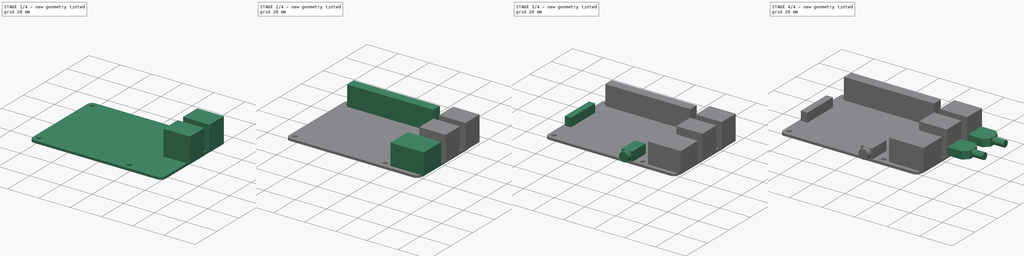
[diagram: build sequence overview — one tinted view per stage of 4, left to right]
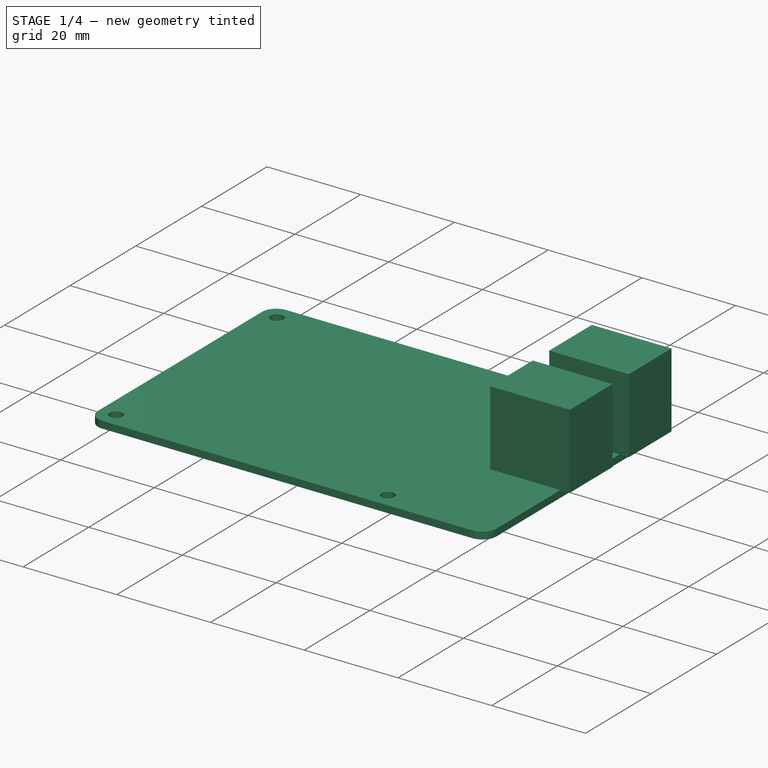
[diagram: stage 1 of 4 — iso view after this stage's code; geometry added in this stage tinted green]
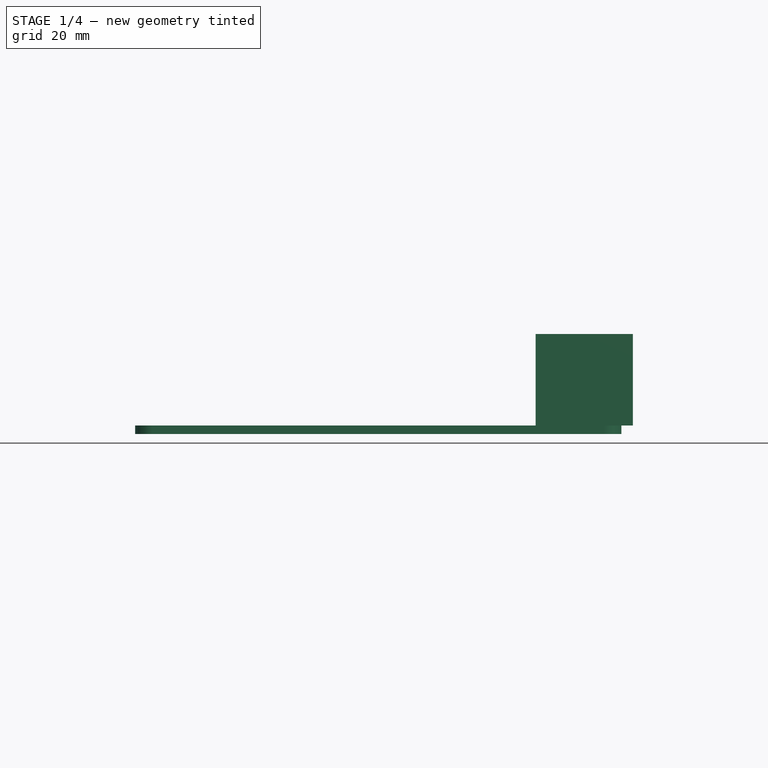
[diagram: stage 1 of 4 — front view after this stage's code; geometry added in this stage tinted green]
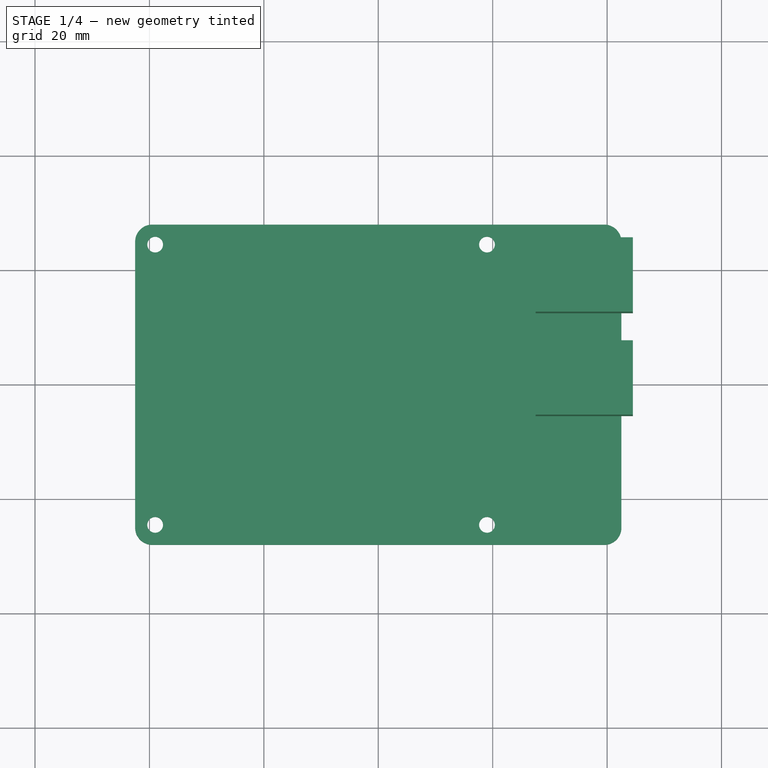
[diagram: stage 1 of 4 — top view after this stage's code; geometry added in this stage tinted green]
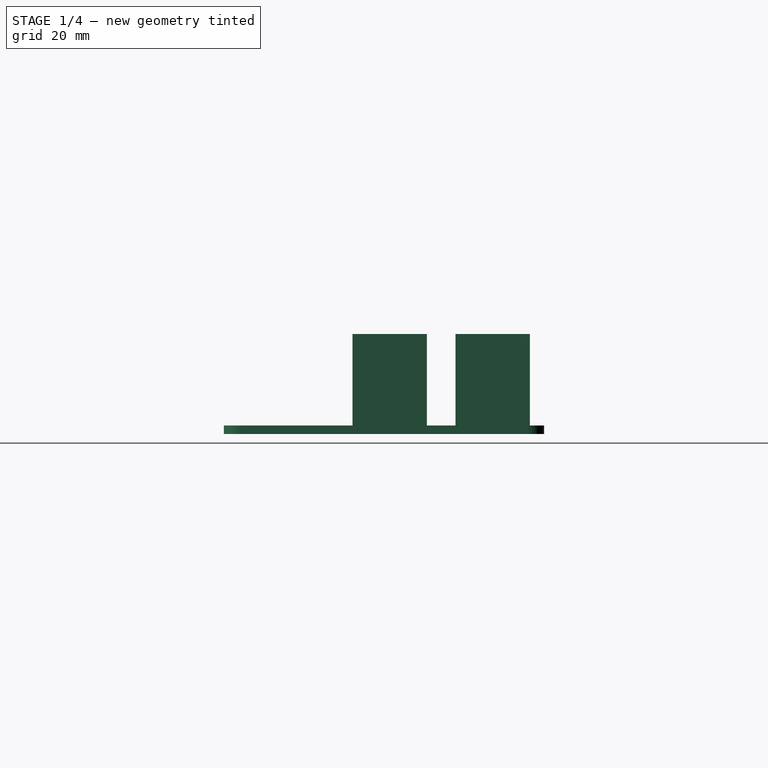
[diagram: stage 1 of 4 — right view after this stage's code; geometry added in this stage tinted green]
FCSTD DOCUMENT  (FreeCAD 0.18R15619 (Git))
Label: raspberrypi
License: All rights reserved
LicenseURL: http://en.wikipedia.org/wiki/All_rights_reserved
objects: Sketcher::SketchObject×11, PartDesign::Pad×10, PartDesign::Pocket×1, PartDesign::Chamfer×1, PartDesign::Body×1, App::Part×1
note: 35 computed .brp shape members not serialized (recipe doc carries the construction recipe); baked Part::Feature solids carry a one-line shape summary decoded from their .brp

FEATURE [Sketcher::SketchObject] Sketch  label="board-sketch"
  MapMode = 5
  Support = -> [XY_Plane]
  sketch-geometry (8):
    g0: LineSegment StartX=-39.5 StartY=28 StartZ=0 EndX=39.5 EndY=28 EndZ=0
    g1: LineSegment StartX=42.5 StartY=25 StartZ=0 EndX=42.5 EndY=-25 EndZ=0
    g2: LineSegment StartX=39.5 StartY=-28 StartZ=0 EndX=-39.5 EndY=-28 EndZ=0
    g3: LineSegment StartX=-42.5 StartY=-25 StartZ=0 EndX=-42.5 EndY=25 EndZ=0
    g4: ArcOfCircle CenterX=-39.5 CenterY=25 CenterZ=0 NormalX=0 NormalY=0 NormalZ=1 AngleXU=0 Radius=3 StartAngle=1.5708 EndAngle=3.14159
    g5: ArcOfCircle CenterX=39.5 CenterY=25 CenterZ=0 NormalX=0 NormalY=0 NormalZ=1 AngleXU=0 Radius=3 StartAngle=0 EndAngle=1.5708
    g6: ArcOfCircle CenterX=39.5 CenterY=-25 CenterZ=0 NormalX=0 NormalY=0 NormalZ=1 AngleXU=0 Radius=3 StartAngle=4.71239 EndAngle=6.28319
    g7: ArcOfCircle CenterX=-39.5 CenterY=-25 CenterZ=0 NormalX=0 NormalY=0 NormalZ=1 AngleXU=0 Radius=3 StartAngle=3.14159 EndAngle=4.71239
  constraints (20):
    c: Horizontal(g0)
    c: Horizontal(g2)
    c: Vertical(g1)
    c: Vertical(g3)
    c: Tangent(g0,g4) = 1.5708
    c: Tangent(g3,g4) = 1.5708
    c: Tangent(g0,g5) = 1.5708
    c: Tangent(g1,g5) = 1.5708
    c: Tangent(g1,g6) = 1.5708
    c: Tangent(g2,g6) = 1.5708
    c: Tangent(g2,g7) = 1.5708
    c: Tangent(g3,g7) = 1.5708
    c: DistanceY(g2,g0) = 56
    c: DistanceX(g3,g1) = 85
    c: Distance(g4,g0) = 3
    c: Distance(g5,g0) = 3
    c: Distance(g6,g1) = 3
    c: Distance(g7,g3) = 3
    c: DistanceY(g-1,g0) = 28
    c: DistanceX(g-2,g1) = 42.5
FEATURE [PartDesign::Pad] Pad  label="board"
  Length = 1.5
  Length2 = 100
  Profile = -> Sketch
  Reversed = true
  Type = 0
FEATURE [Sketcher::SketchObject] Sketch001  label="mounting-holes-sketch"
  ExternalGeometry = -> [Pad]
  MapMode = 5
  Support = -> [Pad]
  sketch-geometry (4):
    g0: Circle CenterX=-39 CenterY=24.5 CenterZ=0 NormalX=0 NormalY=0 NormalZ=1 AngleXU=0 Radius=1.375
    g1: Circle CenterX=19 CenterY=24.5 CenterZ=0 NormalX=0 NormalY=0 NormalZ=1 AngleXU=0 Radius=1.375
    g2: Circle CenterX=19 CenterY=-24.5 CenterZ=0 NormalX=0 NormalY=0 NormalZ=1 AngleXU=0 Radius=1.375
    g3: Circle CenterX=-39 CenterY=-24.5 CenterZ=0 NormalX=0 NormalY=0 NormalZ=1 AngleXU=0 Radius=1.375
  constraints (11):
    c: Distance(g0,g-4) = 3.5
    c: Distance(g0,g-3) = 3.5
    c: Radius(g0) = 1.375
    c: Equal(g0,g1)
    c: Equal(g0,g3)
    c: Vertical(g3,g0)
    c: Horizontal(g0,g1)
    c: Vertical(g1,g2)
    c: Horizontal(g3,g2)
    c: Distance(g2,g-6) = 3.5
    c: Distance(g1,g0) = 58
FEATURE [PartDesign::Pocket] Pocket  label="mounting-holes"
  BaseFeature = -> Pad
  Length = 5
  Length2 = 100
  Profile = -> Sketch001
  Type = 1
FEATURE [Sketcher::SketchObject] Sketch002  label="usb-sketch"
  ExternalGeometry = -> [Pocket]
  MapMode = 5
  Support = -> [Pocket]
  sketch-geometry (8):
    g0: LineSegment StartX=27.5 StartY=25.5 StartZ=0 EndX=44.5 EndY=25.5 EndZ=0
    g1: LineSegment StartX=44.5 StartY=25.5 StartZ=0 EndX=44.5 EndY=12.5 EndZ=0
    g2: LineSegment StartX=44.5 StartY=12.5 StartZ=0 EndX=27.5 EndY=12.5 EndZ=0
    g3: LineSegment StartX=27.5 StartY=12.5 StartZ=0 EndX=27.5 EndY=25.5 EndZ=0
    g4: LineSegment StartX=27.5 StartY=7.5 StartZ=0 EndX=44.5 EndY=7.5 EndZ=0
    g5: LineSegment StartX=44.5 StartY=7.5 StartZ=0 EndX=44.5 EndY=-5.5 EndZ=0
    g6: LineSegment StartX=44.5 StartY=-5.5 StartZ=0 EndX=27.5 EndY=-5.5 EndZ=0
    g7: LineSegment StartX=27.5 StartY=-5.5 StartZ=0 EndX=27.5 EndY=7.5 EndZ=0
  constraints (24):
    c: Coincident(g0,g1)
    c: Coincident(g1,g2)
    c: Coincident(g2,g3)
    c: Coincident(g3,g0)
    c: Horizontal(g0)
    c: Horizontal(g2)
    c: Vertical(g1)
    c: Vertical(g3)
    c: Coincident(g4,g5)
    c: Coincident(g5,g6)
    c: Coincident(g6,g7)
    c: Coincident(g7,g4)
    c: Horizontal(g4)
    c: Horizontal(g6)
    c: Vertical(g5)
    c: Vertical(g7)
    c: Equal(g5,g1)
    c: Equal(g0,g4)
    c: Distance(g0) = 17
    c: Distance(g3) = 13
    c: DistanceY(g-3,g0) = 53.5
    c: DistanceY(g-3,g4) = 35.5
    c: DistanceX(g-4,g0) = 2
    c: DistanceX(g-4,g4) = 2
FEATURE [PartDesign::Pad] Pad001  label="usb"
  BaseFeature = -> Pocket
  Length = 16
  Length2 = 100
  Profile = -> Sketch002
  Type = 0
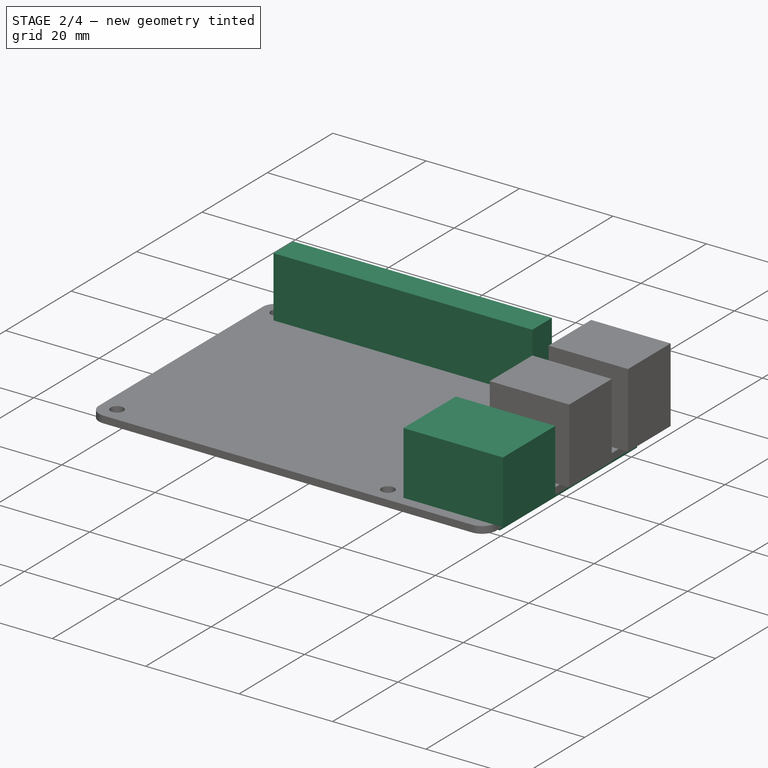
[diagram: stage 2 of 4 — iso view after this stage's code; geometry added in this stage tinted green]
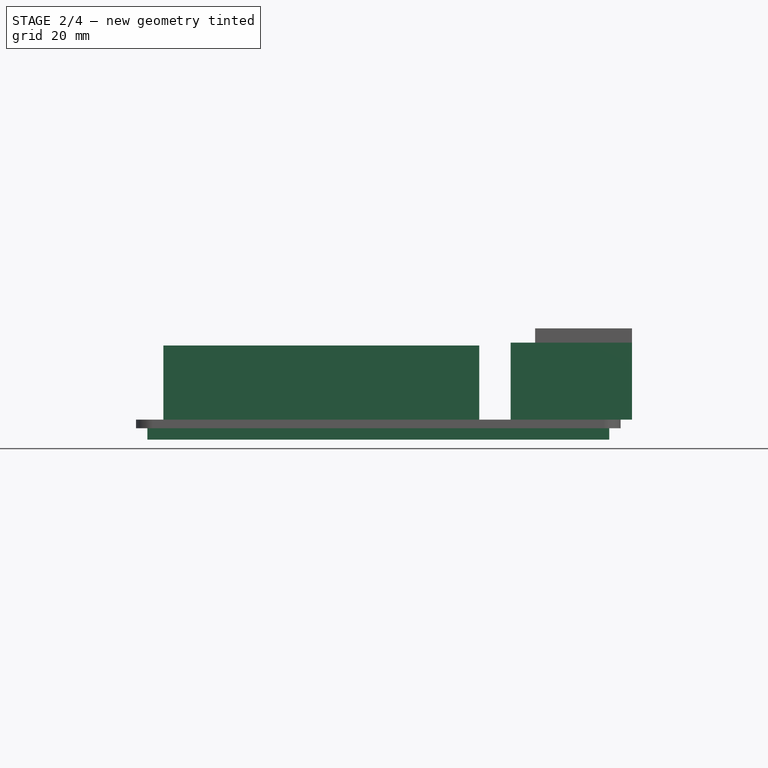
[diagram: stage 2 of 4 — front view after this stage's code; geometry added in this stage tinted green]
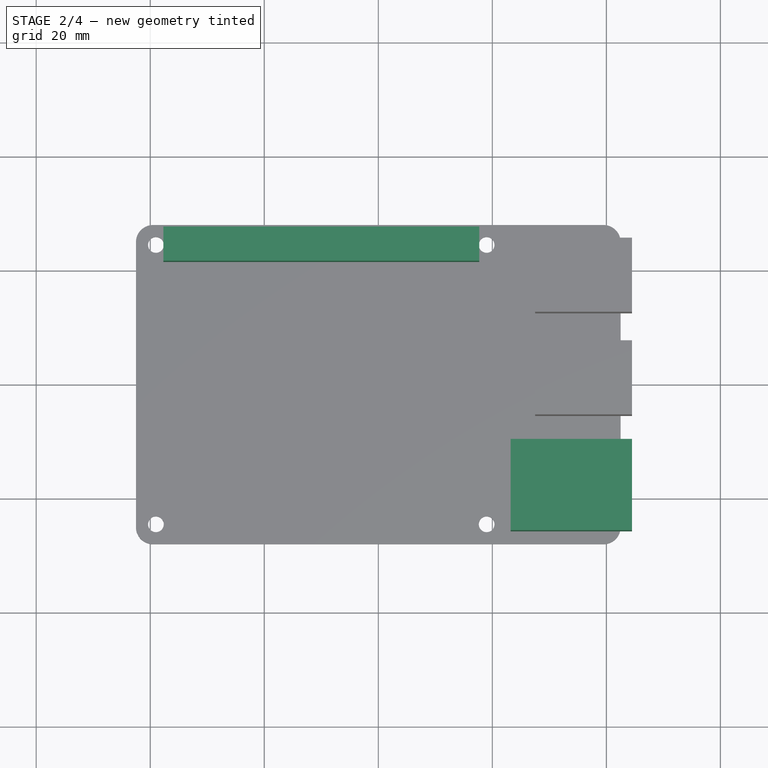
[diagram: stage 2 of 4 — top view after this stage's code; geometry added in this stage tinted green]
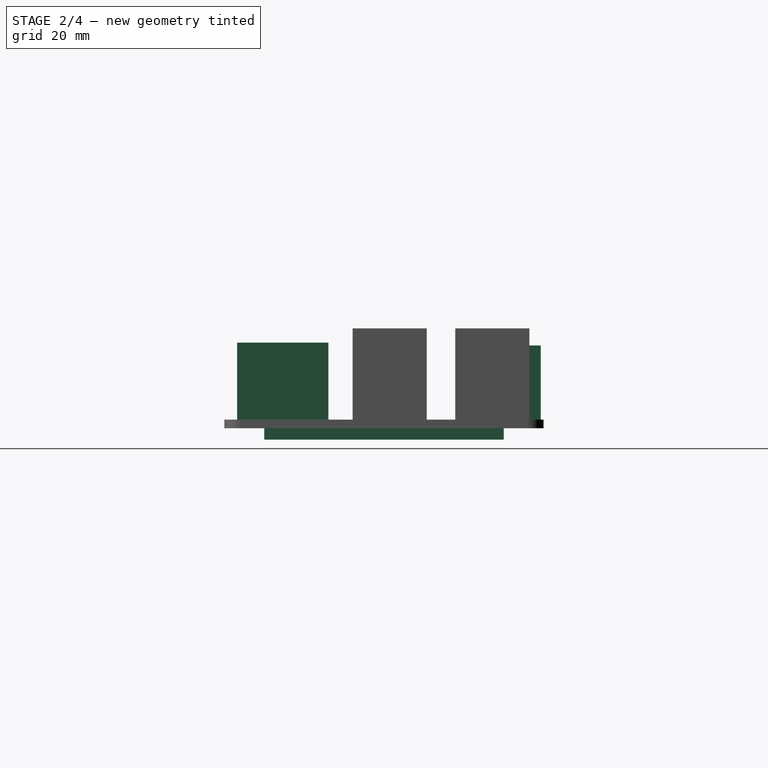
[diagram: stage 2 of 4 — right view after this stage's code; geometry added in this stage tinted green]
FEATURE [Sketcher::SketchObject] Sketch003  label="ethernet-sketch"
  ExternalGeometry = -> [Pad001]
  MapMode = 5
  Support = -> [Pad001]
  sketch-geometry (4):
    g0: LineSegment StartX=23.2 StartY=-9.75 StartZ=0 EndX=44.5 EndY=-9.75 EndZ=0
    g1: LineSegment StartX=44.5 StartY=-9.75 StartZ=0 EndX=44.5 EndY=-25.75 EndZ=0
    g2: LineSegment StartX=44.5 StartY=-25.75 StartZ=0 EndX=23.2 EndY=-25.75 EndZ=0
    g3: LineSegment StartX=23.2 StartY=-25.75 StartZ=0 EndX=23.2 EndY=-9.75 EndZ=0
  constraints (12):
    c: Coincident(g0,g1)
    c: Coincident(g1,g2)
    c: Coincident(g2,g3)
    c: Coincident(g3,g0)
    c: Horizontal(g0)
    c: Horizontal(g2)
    c: Vertical(g1)
    c: Vertical(g3)
    c: Distance(g0) = 21.3
    c: Distance(g1) = 16
    c: DistanceX(g-3,g1) = 2
    c: DistanceY(g-4,g1) = 2.25
FEATURE [PartDesign::Pad] Pad002  label="ethernet"
  BaseFeature = -> Pad001
  Length = 13.5
  Length2 = 100
  Profile = -> Sketch003
  Type = 0
FEATURE [Sketcher::SketchObject] Sketch004  label="soldering-sketch"
  ExternalGeometry = -> [Pad002]
  MapMode = 5
  Placement = pos=(0,0,-1.5) rot=(1,0,0;3.14159rad)
  Support = -> [Pad002]
  sketch-geometry (4):
    g0: LineSegment StartX=-40.5 StartY=21 StartZ=0 EndX=40.5 EndY=21 EndZ=0
    g1: LineSegment StartX=40.5 StartY=21 StartZ=0 EndX=40.5 EndY=-21 EndZ=0
    g2: LineSegment StartX=40.5 StartY=-21 StartZ=0 EndX=-40.5 EndY=-21 EndZ=0
    g3: LineSegment StartX=-40.5 StartY=-21 StartZ=0 EndX=-40.5 EndY=21 EndZ=0
  constraints (12):
    c: Coincident(g0,g1)
    c: Coincident(g1,g2)
    c: Coincident(g2,g3)
    c: Coincident(g3,g0)
    c: Horizontal(g0)
    c: Horizontal(g2)
    c: Vertical(g1)
    c: Vertical(g3)
    c: DistanceX(g0,g-6) = 2
    c: DistanceX(g-4,g0) = 2
    c: DistanceY(g0,g-4) = 4
    c: DistanceY(g-4,g2) = 4
FEATURE [PartDesign::Pad] Pad003  label="soldering"
  BaseFeature = -> Pad002
  Length = 2
  Length2 = 100
  Profile = -> Sketch004
  Type = 0
FEATURE [Sketcher::SketchObject] Sketch005  label="gpio-sketch"
  ExternalGeometry = -> [Pad003]
  MapMode = 5
  Support = -> [Pad003]
  sketch-geometry (4):
    g0: LineSegment StartX=-37.7 StartY=27.5 StartZ=0 EndX=17.7 EndY=27.5 EndZ=0
    g1: LineSegment StartX=17.7 StartY=27.5 StartZ=0 EndX=17.7 EndY=21.5 EndZ=0
    g2: LineSegment StartX=17.7 StartY=21.5 StartZ=0 EndX=-37.7 EndY=21.5 EndZ=0
    g3: LineSegment StartX=-37.7 StartY=21.5 StartZ=0 EndX=-37.7 EndY=27.5 EndZ=0
  constraints (12):
    c: Coincident(g0,g1)
    c: Coincident(g1,g2)
    c: Coincident(g2,g3)
    c: Coincident(g3,g0)
    c: Horizontal(g0)
    c: Horizontal(g2)
    c: Vertical(g1)
    c: Vertical(g3)
    c: DistanceX(g0,g0) = 55.4
    c: DistanceX(g-3,g0) = 56.7
    c: Distance(g3) = 6
    c: DistanceY(g-3,g0) = 3
FEATURE [PartDesign::Pad] Pad004  label="gpio"
  BaseFeature = -> Pad003
  Length = 13
  Length2 = 100
  Profile = -> Sketch005
  Type = 0
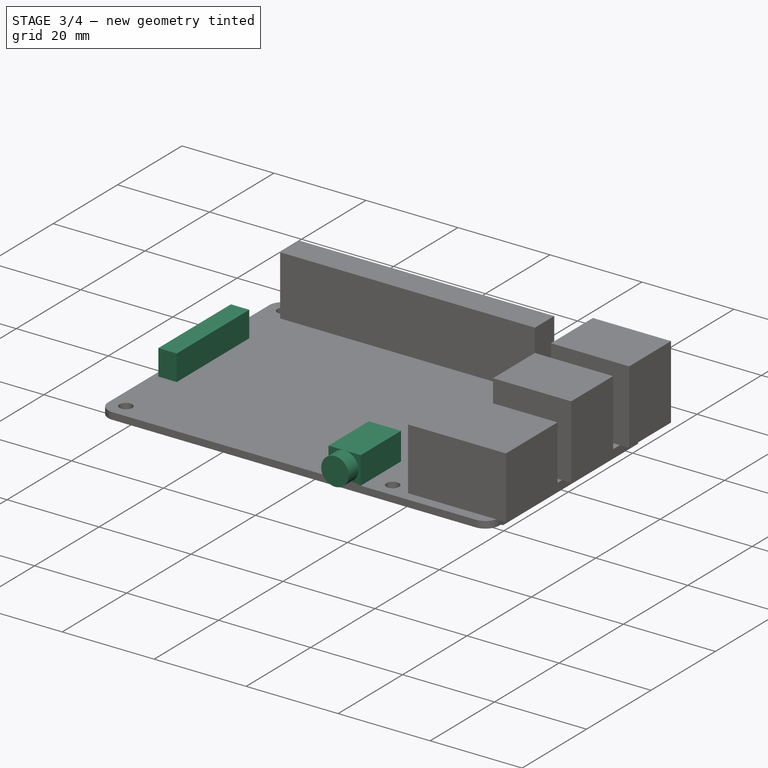
[diagram: stage 3 of 4 — iso view after this stage's code; geometry added in this stage tinted green]
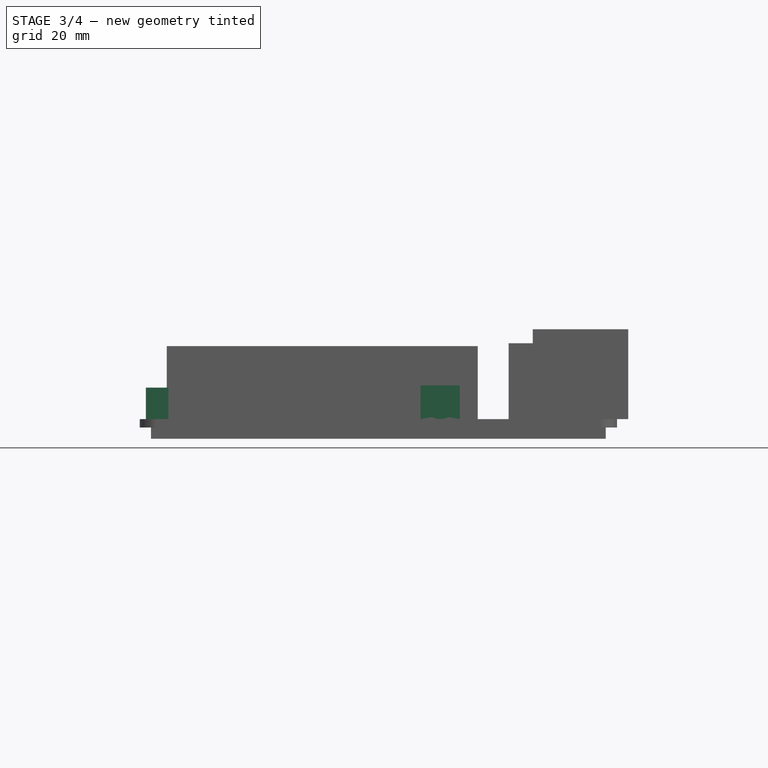
[diagram: stage 3 of 4 — front view after this stage's code; geometry added in this stage tinted green]
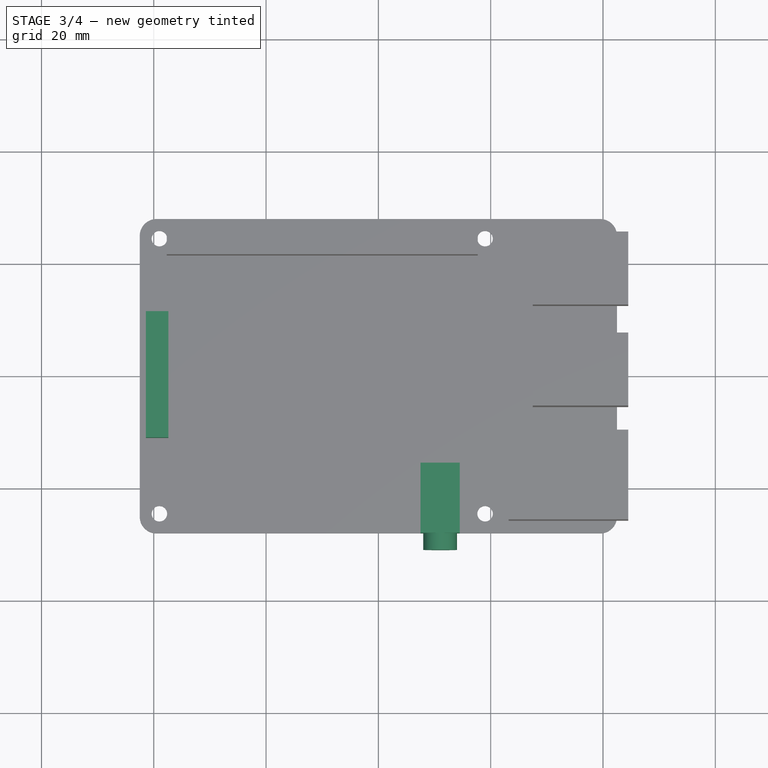
[diagram: stage 3 of 4 — top view after this stage's code; geometry added in this stage tinted green]
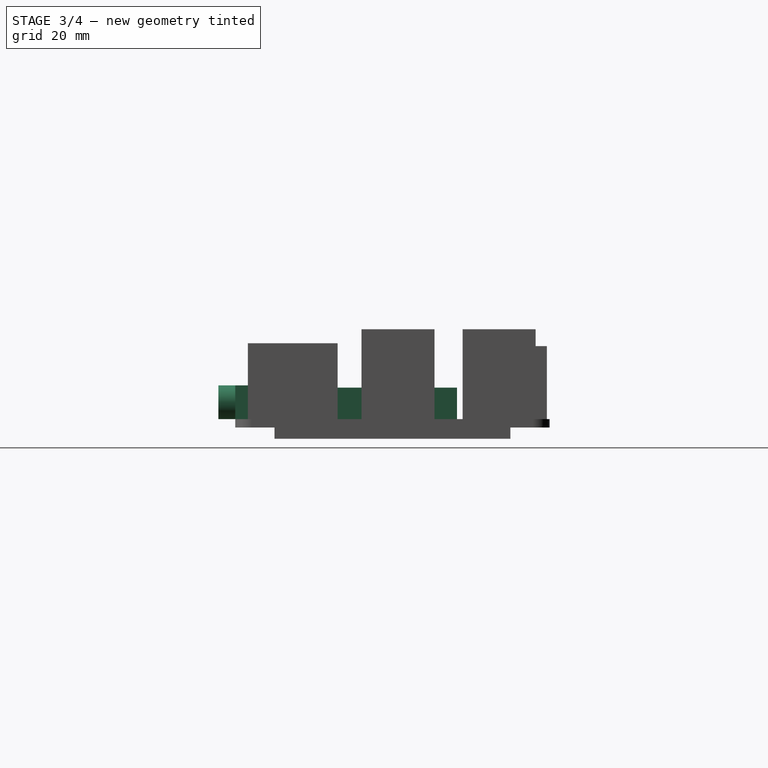
[diagram: stage 3 of 4 — right view after this stage's code; geometry added in this stage tinted green]
FEATURE [Sketcher::SketchObject] Sketch006  label="audio-jack-sketch"
  ExternalGeometry = -> [Pad004,Pad]
  MapMode = 5
  Support = -> [Pad004]
  sketch-geometry (4):
    g0: LineSegment StartX=7.5 StartY=-15.5 StartZ=0 EndX=14.5 EndY=-15.5 EndZ=0
    g1: LineSegment StartX=14.5 StartY=-15.5 StartZ=0 EndX=14.5 EndY=-28 EndZ=0
    g2: LineSegment StartX=14.5 StartY=-28 StartZ=0 EndX=7.5 EndY=-28 EndZ=0
    g3: LineSegment StartX=7.5 StartY=-28 StartZ=0 EndX=7.5 EndY=-15.5 EndZ=0
  constraints (12):
    c: Coincident(g0,g1)
    c: Coincident(g1,g2)
    c: Coincident(g2,g3)
    c: Coincident(g3,g0)
    c: Horizontal(g0)
    c: Horizontal(g2)
    c: Vertical(g1)
    c: Vertical(g3)
    c: DistanceX(g0,g0) = 7
    c: DistanceY(g1,g1) = 12.5
    c: PointOnObject(g2,g-3)
    c: DistanceX(g-5,g2) = 50
FEATURE [PartDesign::Pad] Pad005  label="audio-jack"
  BaseFeature = -> Pad004
  Length = 6
  Length2 = 100
  Profile = -> Sketch006
  Type = 0
FEATURE [Sketcher::SketchObject] Sketch007  label="audio-jack-ext-sketch"
  ExternalGeometry = -> [Pad005]
  MapMode = 5
  Placement = pos=(0,-28,0) rot=(1,0,0;1.5708rad)
  Support = -> [Pad005]
  sketch-geometry (1):
    g0: Circle CenterX=11 CenterY=3 CenterZ=0 NormalX=0 NormalY=0 NormalZ=1 AngleXU=0 Radius=3
  constraints (3):
    c: Radius(g0) = 3
    c: DistanceY(g0,g-4) = 3
    c: DistanceX(g-4,g0) = 3.5
FEATURE [PartDesign::Pad] Pad006  label="audio-jack-ext"
  BaseFeature = -> Pad005
  Length = 3
  Length2 = 100
  Profile = -> Sketch007
  Type = 0
FEATURE [Sketcher::SketchObject] Sketch008
  ExternalGeometry = -> [Pad006]
  MapMode = 5
  Support = -> [Pad006]
  sketch-geometry (4):
    g0: LineSegment StartX=-41.4 StartY=11.5 StartZ=0 EndX=-37.4 EndY=11.5 EndZ=0
    g1: LineSegment StartX=-37.4 StartY=11.5 StartZ=0 EndX=-37.4 EndY=-11 EndZ=0
    g2: LineSegment StartX=-37.4 StartY=-11 StartZ=0 EndX=-41.4 EndY=-11 EndZ=0
    g3: LineSegment StartX=-41.4 StartY=-11 StartZ=0 EndX=-41.4 EndY=11.5 EndZ=0
  constraints (12):
    c: Coincident(g0,g1)
    c: Coincident(g1,g2)
    c: Coincident(g2,g3)
    c: Coincident(g3,g0)
    c: Horizontal(g0)
    c: Horizontal(g2)
    c: Vertical(g1)
    c: Vertical(g3)
    c: Distance(g1) = 22.5
    c: Distance(g0) = 4
    c: DistanceX(g-3,g0) = 1.1
    c: DistanceY(g-4,g2) = 17
FEATURE [PartDesign::Pad] Pad007  label="displayport"
  BaseFeature = -> Pad006
  Length = 5.6
  Length2 = 100
  Profile = -> Sketch008
  Type = 0
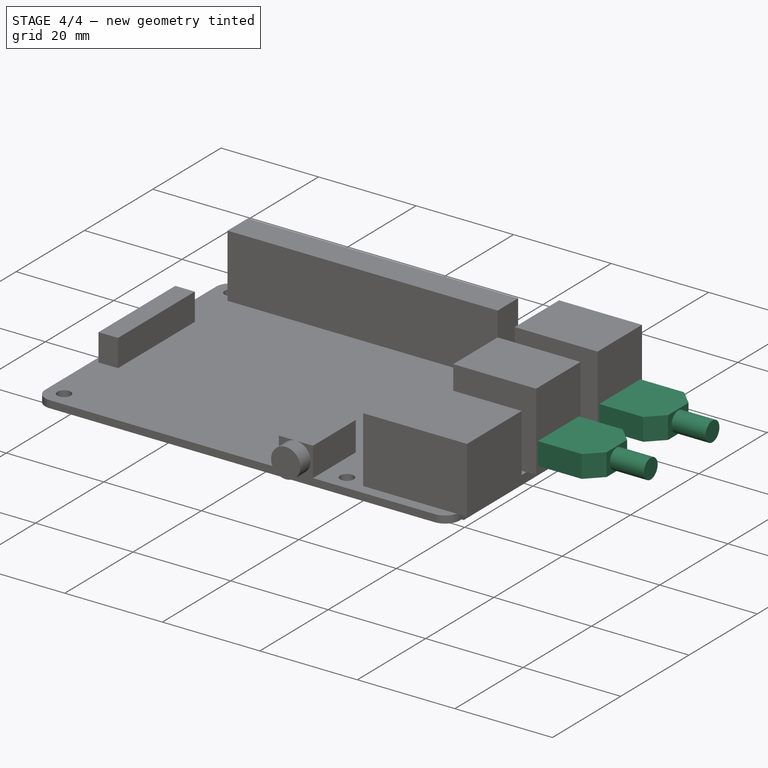
[diagram: stage 4 of 4 — iso view after this stage's code; geometry added in this stage tinted green]
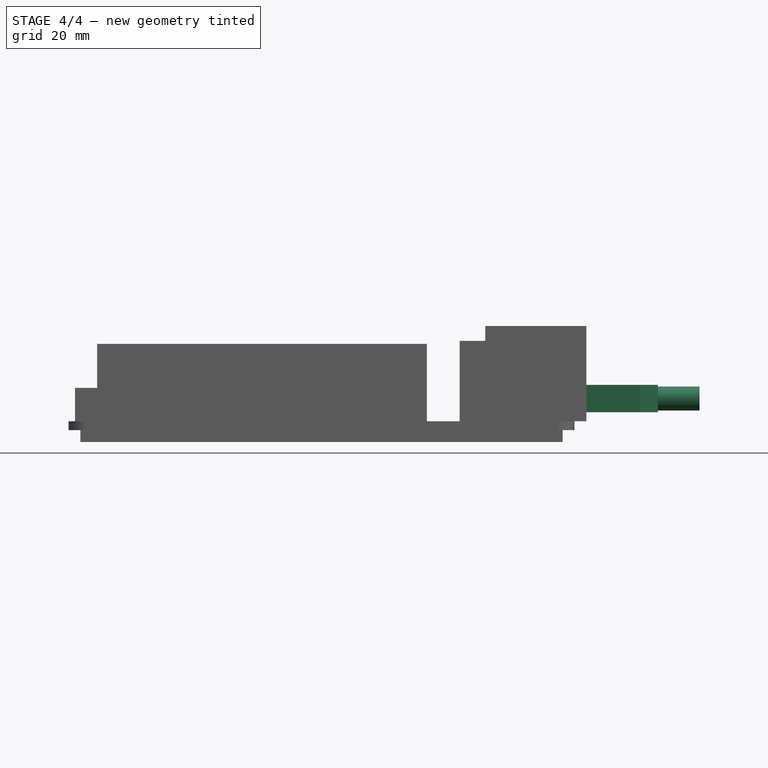
[diagram: stage 4 of 4 — front view after this stage's code; geometry added in this stage tinted green]
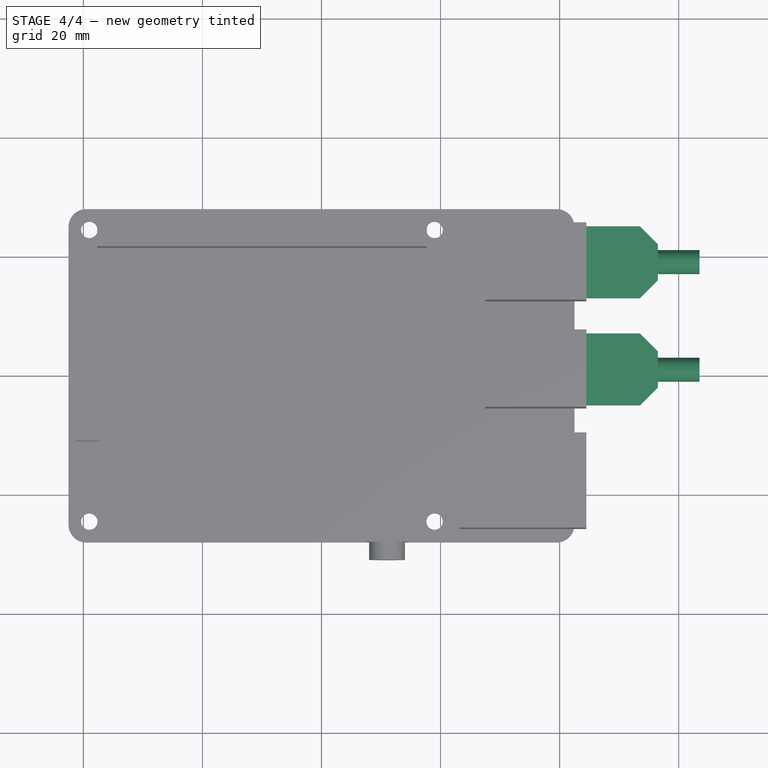
[diagram: stage 4 of 4 — top view after this stage's code; geometry added in this stage tinted green]
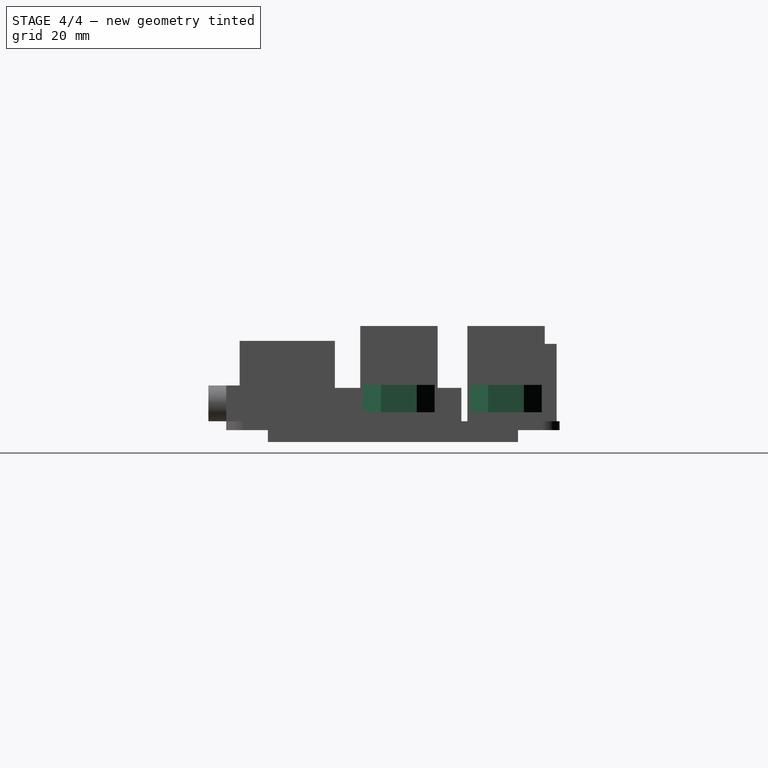
[diagram: stage 4 of 4 — right view after this stage's code; geometry added in this stage tinted green]
FEATURE [Sketcher::SketchObject] Sketch009
  ExternalGeometry = -> [Pad007]
  MapMode = 5
  Placement = pos=(44.5,0,0) rot=(0.57735,0.57735,0.57735;2.0944rad)
  Support = -> [Pad007]
  sketch-geometry (8):
    g0: LineSegment StartX=-5 StartY=6.1 StartZ=0 EndX=7 EndY=6.1 EndZ=0
    g1: LineSegment StartX=7 StartY=6.1 StartZ=0 EndX=7 EndY=1.5 EndZ=0
    g2: LineSegment StartX=7 StartY=1.5 StartZ=0 EndX=-5 EndY=1.5 EndZ=0
    g3: LineSegment StartX=-5 StartY=1.5 StartZ=0 EndX=-5 EndY=6.1 EndZ=0
    g4: LineSegment StartX=13 StartY=6.1 StartZ=0 EndX=25 EndY=6.1 EndZ=0
    g5: LineSegment StartX=25 StartY=6.1 StartZ=0 EndX=25 EndY=1.5 EndZ=0
    g6: LineSegment StartX=25 StartY=1.5 StartZ=0 EndX=13 EndY=1.5 EndZ=0
    g7: LineSegment StartX=13 StartY=1.5 StartZ=0 EndX=13 EndY=6.1 EndZ=0
  constraints (24):
    c: Coincident(g0,g1)
    c: Coincident(g1,g2)
    c: Coincident(g2,g3)
    c: Coincident(g3,g0)
    c: Horizontal(g0)
    c: Horizontal(g2)
    c: Vertical(g1)
    c: Vertical(g3)
    c: Distance(g0) = 12
    c: Distance(g1) = 4.6
    c: DistanceY(g-1,g1) = 1.5
    c: Coincident(g4,g5)
    c: Coincident(g5,g6)
    c: Coincident(g6,g7)
    c: Coincident(g7,g4)
    c: Horizontal(g4)
    c: Horizontal(g6)
    c: Vertical(g5)
    c: Vertical(g7)
    c: Equal(g7,g1)
    c: Equal(g4,g0)
    c: Horizontal(g1,g6)
    c: Distance(g2,g-3) = 0.5
    c: Distance(g6,g-4) = 0.5
FEATURE [PartDesign::Pad] Pad008
  BaseFeature = -> Pad007
  Length = 12
  Length2 = 100
  Profile = -> Sketch009
  Type = 0
FEATURE [PartDesign::Chamfer] Chamfer
  Base = -> Pad008 [Edge159,Edge155,Edge171,Edge167,Edge163]
  BaseFeature = -> Pad008
  Size = 3
FEATURE [Sketcher::SketchObject] Sketch010
  MapMode = 5
  Placement = pos=(56.5,0,0) rot=(0.57735,0.57735,0.57735;2.0944rad)
  Support = -> [Chamfer]
  sketch-geometry (2):
    g0: Circle CenterX=0.930018 CenterY=3.81191 CenterZ=0 NormalX=0 NormalY=0 NormalZ=1 AngleXU=0 Radius=2.0174
    g1: Circle CenterX=19.0194 CenterY=3.81191 CenterZ=0 NormalX=0 NormalY=0 NormalZ=1 AngleXU=0 Radius=2.0174
  constraints (2):
    c: Equal(g1,g0)
    c: Horizontal(g1,g0)
FEATURE [PartDesign::Pad] Pad009
  BaseFeature = -> Chamfer
  Length = 7
  Length2 = 100
  Profile = -> Sketch010
  Type = 0
FEATURE [PartDesign::Body] Body  label="raspberrypi3b+"
  Group = -> [Sketch,Pad,Sketch001,Pocket,Sketch002,Pad001,Sketch003,Pad002,Sketch004,Pad003,Sketch005,Pad004,Sketch006,Pad005,Sketch007,Pad006,Sketch008,Pad007,Sketch009,Pad008,Chamfer,Sketch010,Pad009]
  Origin = -> Origin
  Tip = -> Pad009
FEATURE [App::Part] Part  label="raspberrypi3b+001"
  Group = -> [Body]
  License = CC BY 3.0
  LicenseURL = http://creativecommons.org/licenses/by/3.0/
  Origin = -> Origin001
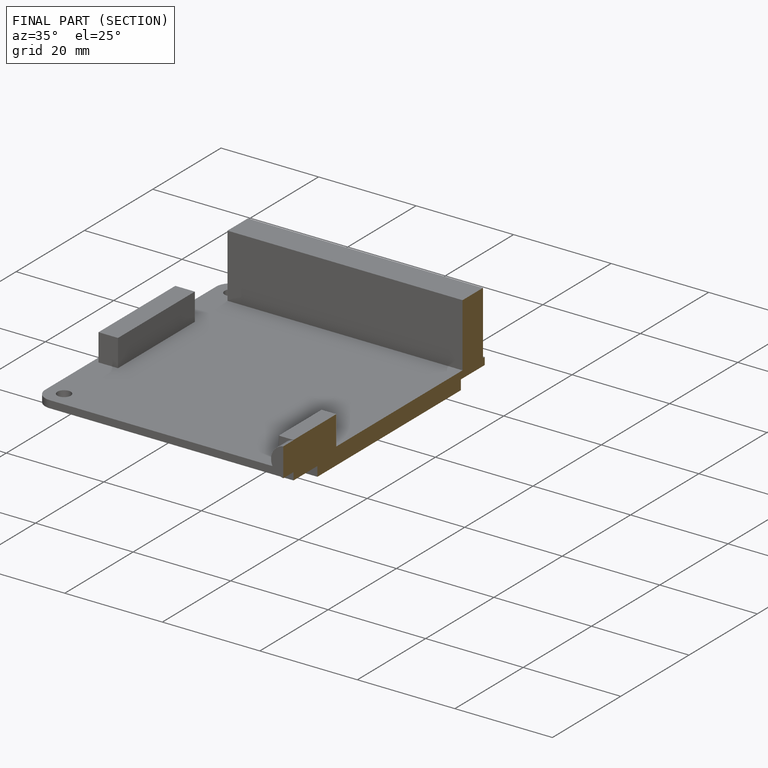
[diagram: finished part — half-section view (interior)]
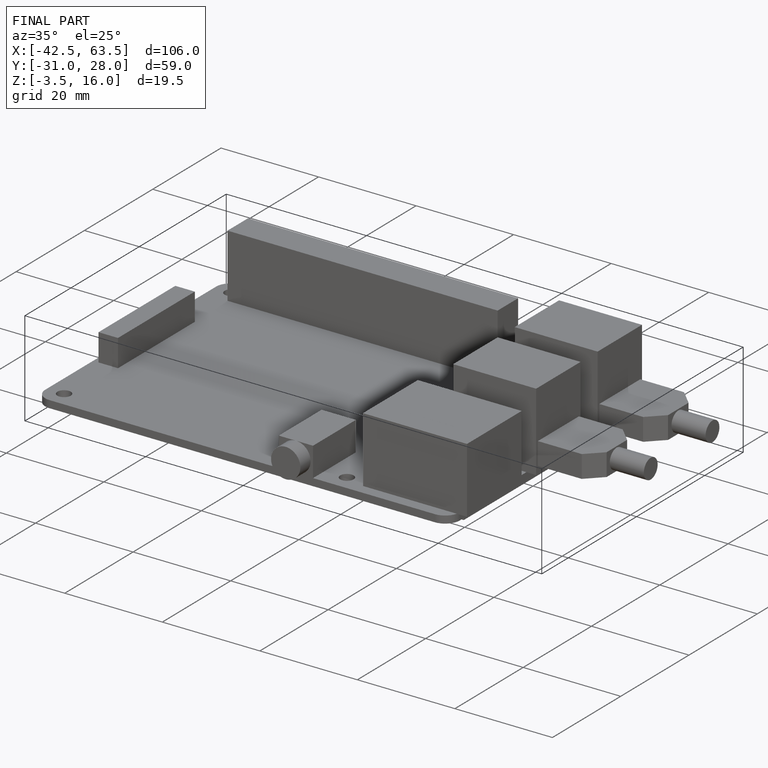
[diagram: finished part — iso view with bounding-box wireframe]
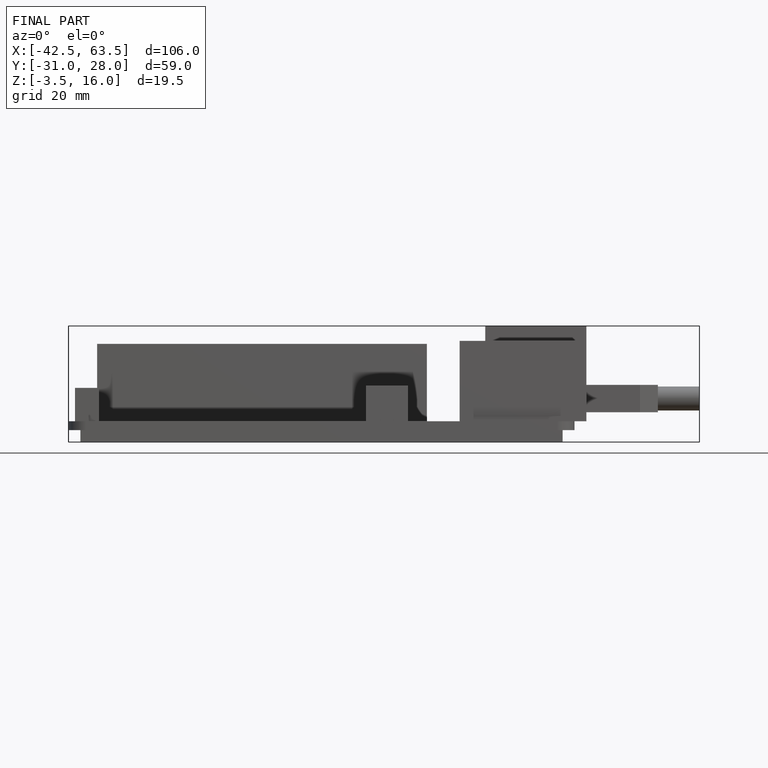
[diagram: finished part — front view with bounding-box wireframe]
